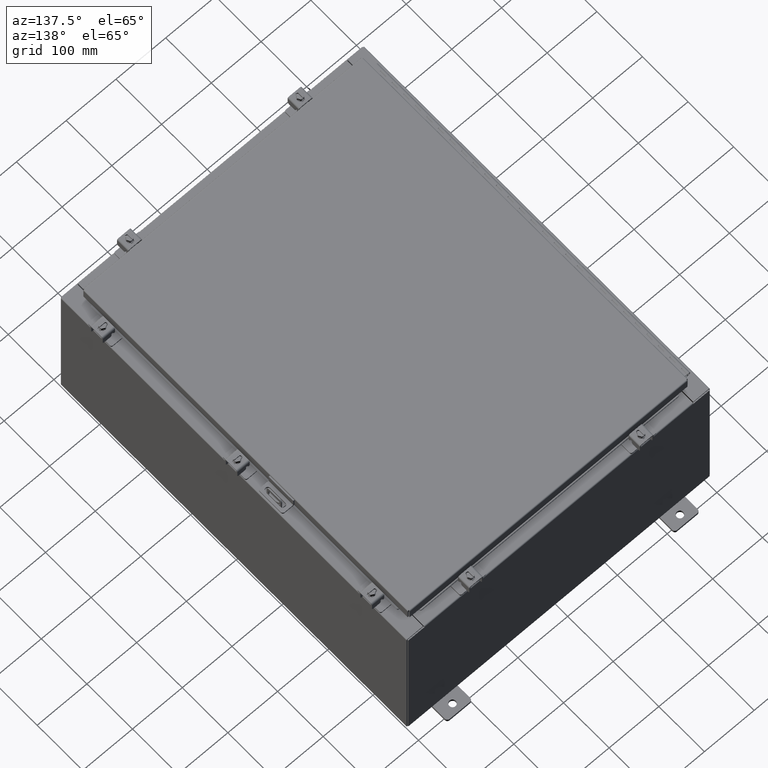
[diagram: clean part render]
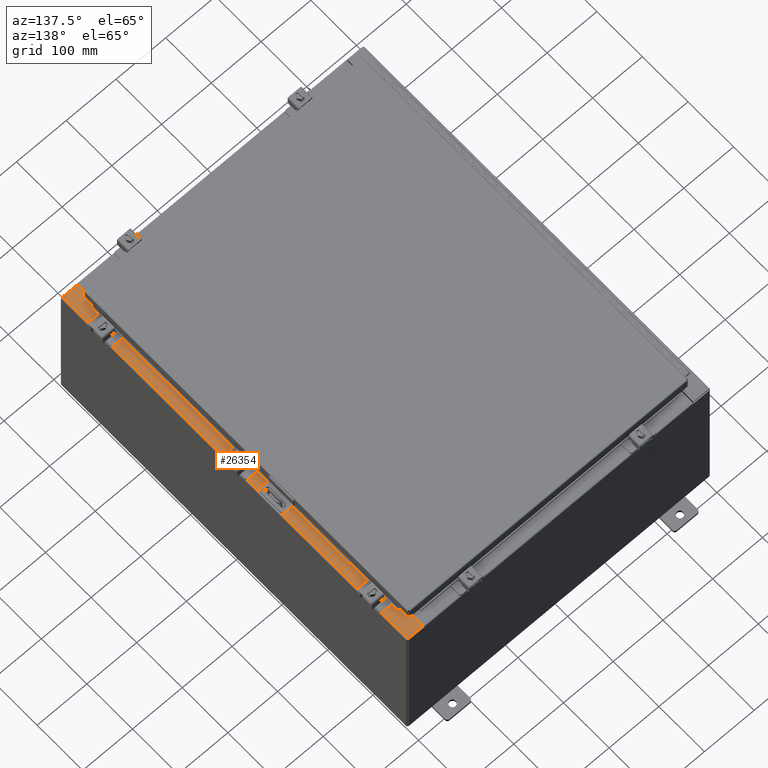
[diagram: same view with one face highlighted and labeled with its STEP entity id]
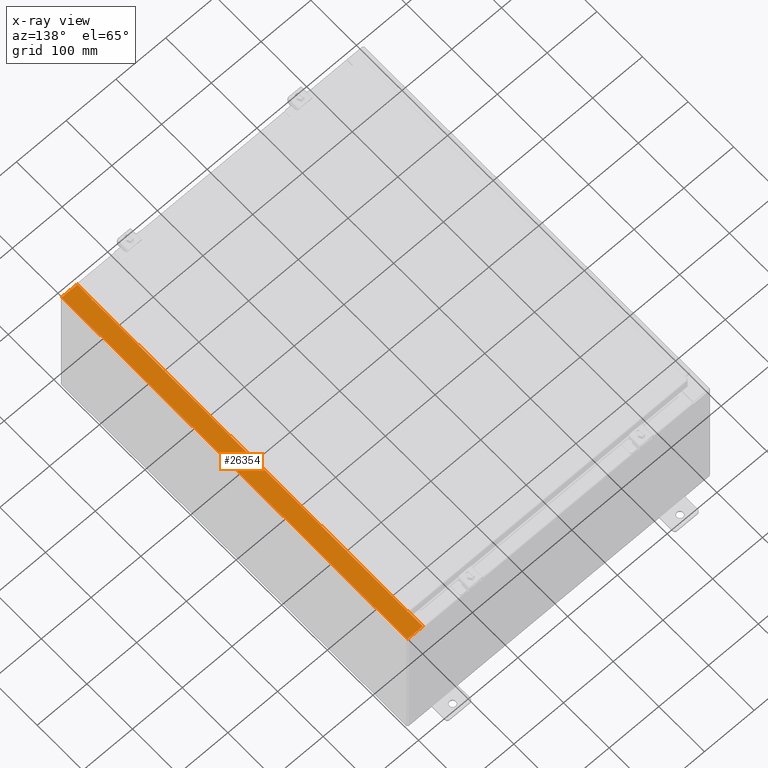
[diagram: x-ray of the same camera — body ghosted, the highlighted face saturated]
A machine part, auxiliary view. The second image highlights one B-rep face of the part: STEP entity #26354.
The next image is the same camera in x-ray: the body ghosted, the highlighted face saturated — about 0% of this face is hidden behind the body in this view.
In plain terms, the highlighted planar face has unit normal (-0, 0, -1).
Its self-contained STEP definition (entity closure, byte-faithful):
#28 = CARTESIAN_POINT ( 'NONE',  ( 10.69970000000003900, 14.92529999999999800, 11.92530000000000900 ) ) ;
#93 = ORIENTED_EDGE ( 'NONE', *, *, #24763, .F. ) ;
#755 = CARTESIAN_POINT ( 'NONE',  ( 10.69970000000003900, 0.0000000000000000000, 11.92530000000000900 ) ) ;
#863 = ORIENTED_EDGE ( 'NONE', *, *, #8645, .T. ) ;
#1111 = DIRECTION ( 'NONE',  ( 1.000000000000000000, 0.0000000000000000000, 0.0000000000000000000 ) ) ;
#1662 = CARTESIAN_POINT ( 'NONE',  ( 10.75005000000004100, -13.61242500000000000, 11.92530000000000900 ) ) ;
#2096 = VECTOR ( 'NONE', #18347, 39.37007874015748100 ) ;
#2228 = DIRECTION ( 'NONE',  ( -1.000000000000000000, 0.0000000000000000000, 7.132762385546384700E-015 ) ) ;
#2263 = CARTESIAN_POINT ( 'NONE',  ( 10.75005000000004100, -13.59375000000000000, 11.92530000000000900 ) ) ;
#2811 = DIRECTION ( 'NONE',  ( -0.0000000000000000000, -1.000000000000000000, -0.0000000000000000000 ) ) ;
#3996 = VERTEX_POINT ( 'NONE', #31839 ) ;
#4572 = DIRECTION ( 'NONE',  ( 1.000000000000000000, 0.0000000000000000000, 0.0000000000000000000 ) ) ;
#5832 = CARTESIAN_POINT ( 'NONE',  ( 11.91230000000003700, 14.92529999999999800, 11.92530000000000000 ) ) ;
#6345 = VECTOR ( 'NONE', #11948, 39.37007874015748100 ) ;
#6488 = CARTESIAN_POINT ( 'NONE',  ( 10.69970000000003900, 13.63109999999999800, 11.92530000000000900 ) ) ;
#6671 = ORIENTED_EDGE ( 'NONE', *, *, #33185, .F. ) ;
#6854 = EDGE_CURVE ( 'NONE', #27114, #29146, #13123, .T. ) ;
#7034 = CARTESIAN_POINT ( 'NONE',  ( 8.532114493236847900E-014, 14.92529999999999800, 11.92530000000008500 ) ) ;
#7060 = EDGE_CURVE ( 'NONE', #11731, #36988, #34864, .T. ) ;
#7530 = DIRECTION ( 'NONE',  ( 0.0000000000000000000, -1.000000000000000000, 0.0000000000000000000 ) ) ;
#8577 = VERTEX_POINT ( 'NONE', #34399 ) ;
#8645 = EDGE_CURVE ( 'NONE', #3996, #16124, #9840, .T. ) ;
#9373 = VECTOR ( 'NONE', #7530, 39.37007874015748100 ) ;
#9421 = CARTESIAN_POINT ( 'NONE',  ( 11.91230000000003700, -14.92529999999999800, 11.92530000000000000 ) ) ;
#9840 = LINE ( 'NONE', #26271, #2096 ) ;
#10305 = DIRECTION ( 'NONE',  ( -1.000000000000000000, 0.0000000000000000000, 0.0000000000000000000 ) ) ;
#10811 = LINE ( 'NONE', #35808, #17610 ) ;
#10848 = PLANE ( 'NONE',  #21554 ) ;
#11638 = LINE ( 'NONE', #18923, #19313 ) ;
#11731 = VERTEX_POINT ( 'NONE', #34177 ) ;
#11948 = DIRECTION ( 'NONE',  ( 1.000000000000000000, 0.0000000000000000000, 0.0000000000000000000 ) ) ;
#12267 = ORIENTED_EDGE ( 'NONE', *, *, #22770, .T. ) ;
#13123 = LINE ( 'NONE', #7034, #25801 ) ;
#14046 = LINE ( 'NONE', #23438, #6345 ) ;
#15549 = ORIENTED_EDGE ( 'NONE', *, *, #36888, .F. ) ;
#15586 = LINE ( 'NONE', #22906, #30086 ) ;
#15815 = CARTESIAN_POINT ( 'NONE',  ( 10.71270000000004100, 13.59375000000000000, 11.92530000000000900 ) ) ;
#16124 = VERTEX_POINT ( 'NONE', #9421 ) ;
#16177 = AXIS2_PLACEMENT_3D ( 'NONE', #35776, #18440, #1111 ) ;
#16588 = VERTEX_POINT ( 'NONE', #26600 ) ;
#17610 = VECTOR ( 'NONE', #18467, 39.37007874015748100 ) ;
#18026 = EDGE_CURVE ( 'NONE', #29146, #20910, #32483, .T. ) ;
#18089 = ORIENTED_EDGE ( 'NONE', *, *, #20501, .F. ) ;
#18347 = DIRECTION ( 'NONE',  ( 1.000000000000000000, 0.0000000000000000000, -7.132762385546384700E-015 ) ) ;
#18440 = DIRECTION ( 'NONE',  ( 7.132762385546384700E-015, 0.0000000000000000000, 1.000000000000000000 ) ) ;
#18467 = DIRECTION ( 'NONE',  ( -1.000000000000000000, 0.0000000000000000000, 0.0000000000000000000 ) ) ;
#18887 = CARTESIAN_POINT ( 'NONE',  ( 10.69970000000003900, -13.63109999999999800, 11.92530000000000900 ) ) ;
#18923 = CARTESIAN_POINT ( 'NONE',  ( 10.75005000000004100, 13.63109999999999800, 11.92530000000000900 ) ) ;
#19087 = DIRECTION ( 'NONE',  ( -0.0000000000000000000, 1.000000000000000000, -0.0000000000000000000 ) ) ;
#19313 = VECTOR ( 'NONE', #10305, 39.37007874015748100 ) ;
#19580 = DIRECTION ( 'NONE',  ( -7.132762385546384700E-015, 0.0000000000000000000, -1.000000000000000000 ) ) ;
#20501 = EDGE_CURVE ( 'NONE', #16588, #20910, #11638, .T. ) ;
#20910 = VERTEX_POINT ( 'NONE', #6488 ) ;
#21554 = AXIS2_PLACEMENT_3D ( 'NONE', #28038, #19580, #2228 ) ;
#21584 = ORIENTED_EDGE ( 'NONE', *, *, #7060, .F. ) ;
#21737 = EDGE_CURVE ( 'NONE', #31562, #11731, #30550, .T. ) ;
#21903 = DIRECTION ( 'NONE',  ( 7.132762385546384700E-015, 0.0000000000000000000, 1.000000000000000000 ) ) ;
#21926 = CARTESIAN_POINT ( 'NONE',  ( 10.69970000000003900, 0.0000000000000000000, 11.92530000000000900 ) ) ;
#22459 = VERTEX_POINT ( 'NONE', #2263 ) ;
#22770 = EDGE_CURVE ( 'NONE', #27307, #3996, #34574, .T. ) ;
#22906 = CARTESIAN_POINT ( 'NONE',  ( 11.91230000000003700, -14.92529999999999800, 11.92530000000000000 ) ) ;
#23438 = CARTESIAN_POINT ( 'NONE',  ( 10.69970000000003900, -13.63109999999999800, 11.92530000000000900 ) ) ;
#23896 = DIRECTION ( 'NONE',  ( 0.0000000000000000000, -1.000000000000000000, 0.0000000000000000000 ) ) ;
#24763 = EDGE_CURVE ( 'NONE', #36988, #16588, #33513, .T. ) ;
#25116 = CIRCLE ( 'NONE', #36416, 0.01867499999999949400 ) ;
#25801 = VECTOR ( 'NONE', #37024, 39.37007874015748100 ) ;
#26271 = CARTESIAN_POINT ( 'NONE',  ( 8.532114493236847900E-014, -14.92529999999999800, 11.92530000000008500 ) ) ;
#26354 = ADVANCED_FACE ( 'NONE', ( #26709 ), #10848, .F. ) ;
#26370 = ORIENTED_EDGE ( 'NONE', *, *, #21737, .F. ) ;
#26600 = CARTESIAN_POINT ( 'NONE',  ( 10.75005000000004100, 13.63109999999999800, 11.92530000000000900 ) ) ;
#26709 = FACE_OUTER_BOUND ( 'NONE', #36725, .T. ) ;
#27114 = VERTEX_POINT ( 'NONE', #5832 ) ;
#27132 = ORIENTED_EDGE ( 'NONE', *, *, #35644, .F. ) ;
#27307 = VERTEX_POINT ( 'NONE', #18887 ) ;
#28038 = CARTESIAN_POINT ( 'NONE',  ( 8.532114493236847900E-014, 0.0000000000000000000, 11.92530000000008500 ) ) ;
#29146 = VERTEX_POINT ( 'NONE', #28 ) ;
#30086 = VECTOR ( 'NONE', #2811, 39.37007874015748100 ) ;
#30184 = ORIENTED_EDGE ( 'NONE', *, *, #18026, .T. ) ;
#30475 = CARTESIAN_POINT ( 'NONE',  ( 10.71270000000004100, -13.59375000000000000, 11.92530000000000900 ) ) ;
#30550 = LINE ( 'NONE', #30475, #37317 ) ;
#31562 = VERTEX_POINT ( 'NONE', #36497 ) ;
#31839 = CARTESIAN_POINT ( 'NONE',  ( 10.69970000000003900, -14.92529999999999800, 11.92530000000000900 ) ) ;
#32454 = EDGE_CURVE ( 'NONE', #27307, #8577, #14046, .T. ) ;
#32483 = LINE ( 'NONE', #21926, #9373 ) ;
#32883 = ORIENTED_EDGE ( 'NONE', *, *, #6854, .T. ) ;
#33185 = EDGE_CURVE ( 'NONE', #22459, #31562, #10811, .T. ) ;
#33513 = CIRCLE ( 'NONE', #16177, 0.01867499999999949400 ) ;
#33653 = VECTOR ( 'NONE', #23896, 39.37007874015748100 ) ;
#33939 = VECTOR ( 'NONE', #34184, 39.37007874015748100 ) ;
#34177 = CARTESIAN_POINT ( 'NONE',  ( 10.71270000000004100, 13.59375000000000000, 11.92530000000000900 ) ) ;
#34184 = DIRECTION ( 'NONE',  ( 1.000000000000000000, 0.0000000000000000000, 0.0000000000000000000 ) ) ;
#34399 = CARTESIAN_POINT ( 'NONE',  ( 10.75005000000004100, -13.63109999999999800, 11.92530000000000900 ) ) ;
#34574 = LINE ( 'NONE', #755, #33653 ) ;
#34864 = LINE ( 'NONE', #15815, #33939 ) ;
#35091 = CARTESIAN_POINT ( 'NONE',  ( 10.75005000000004100, 13.59375000000000000, 11.92530000000000900 ) ) ;
#35644 = EDGE_CURVE ( 'NONE', #8577, #22459, #25116, .T. ) ;
#35776 = CARTESIAN_POINT ( 'NONE',  ( 10.75005000000004100, 13.61242500000000000, 11.92530000000000900 ) ) ;
#35808 = CARTESIAN_POINT ( 'NONE',  ( 10.75005000000004100, -13.59375000000000000, 11.92530000000000900 ) ) ;
#35818 = ORIENTED_EDGE ( 'NONE', *, *, #32454, .F. ) ;
#36416 = AXIS2_PLACEMENT_3D ( 'NONE', #1662, #21903, #4572 ) ;
#36497 = CARTESIAN_POINT ( 'NONE',  ( 10.71270000000004100, -13.59375000000000000, 11.92530000000000900 ) ) ;
#36725 = EDGE_LOOP ( 'NONE', ( #35818, #12267, #863, #15549, #32883, #30184, #18089, #93, #21584, #26370, #6671, #27132 ) ) ;
#36888 = EDGE_CURVE ( 'NONE', #27114, #16124, #15586, .T. ) ;
#36988 = VERTEX_POINT ( 'NONE', #35091 ) ;
#37024 = DIRECTION ( 'NONE',  ( -1.000000000000000000, 0.0000000000000000000, 7.132762385546384700E-015 ) ) ;
#37317 = VECTOR ( 'NONE', #19087, 39.37007874015748100 ) ;